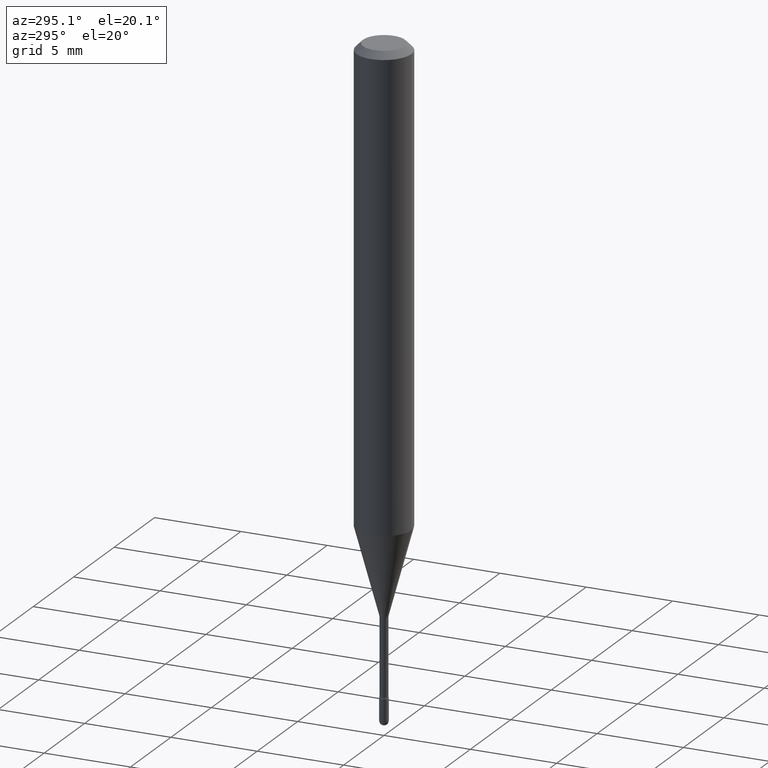
[diagram: clean part render]
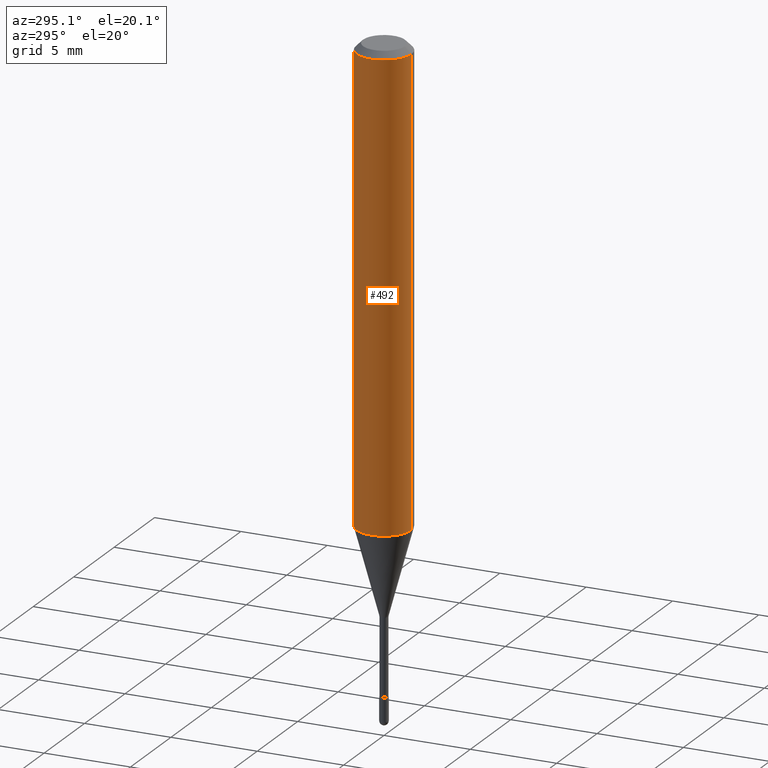
[diagram: same view with one face highlighted and labeled with its STEP entity id]
A machine part, auxiliary view. The second image highlights one B-rep face of the part: STEP entity #492.
In plain terms, the highlighted cylindrical surface (edge-blend (fillet) strip) has radius 1.5875 mm, axis along (-0, 0, 1).
Its self-contained STEP definition (entity closure, byte-faithful):
#26 = CARTESIAN_POINT ( 'NONE',  ( -4.364351673553657356E-16, -0.06250000000000371925, -1.061828102118092865 ) ) ;
#35 = FACE_OUTER_BOUND ( 'NONE', #183, .T. ) ;
#40 = CARTESIAN_POINT ( 'NONE',  ( 4.440892098500884514E-16, 0.06249999999999629463, -1.061828102118093309 ) ) ;
#58 = CARTESIAN_POINT ( 'NONE',  ( 4.440892098500625669E-16, 0.06250000000000000000, 2.598646609340937925E-16 ) ) ;
#64 = DIRECTION ( 'NONE',  ( -6.982962677686265922E-15, -1.000000000000000000, 3.483106191921935554E-15 ) ) ;
#99 = CARTESIAN_POINT ( 'NONE',  ( 3.668351455685129279E-31, -5.237009710971683760E-17, -0.01500000000000008271 ) ) ;
#108 = AXIS2_PLACEMENT_3D ( 'NONE', #163, #334, #563 ) ;
#130 = VERTEX_POINT ( 'NONE', #147 ) ;
#147 = CARTESIAN_POINT ( 'NONE',  ( 4.440892098500887472E-16, 0.06249999999999995837, -0.01500000000000030129 ) ) ;
#152 = AXIS2_PLACEMENT_3D ( 'NONE', #99, #263, #64 ) ;
#163 = CARTESIAN_POINT ( 'NONE',  ( -1.169113584055446105E-44, 1.669184350826100908E-30, 4.780733988912460139E-16 ) ) ;
#164 = EDGE_CURVE ( 'NONE', #130, #321, #451, .T. ) ;
#183 = EDGE_LOOP ( 'NONE', ( #359, #488, #552, #461 ) ) ;
#205 = EDGE_CURVE ( 'NONE', #458, #321, #354, .T. ) ;
#242 = EDGE_CURVE ( 'NONE', #464, #458, #541, .T. ) ;
#263 = DIRECTION ( 'NONE',  ( -2.445567637123405880E-29, 3.491339807314436332E-15, 1.000000000000000000 ) ) ;
#286 = CARTESIAN_POINT ( 'NONE',  ( 2.596772442728175058E-29, -3.707202721450037054E-15, -1.061828102118093087 ) ) ;
#305 = LINE ( 'NONE', #58, #532 ) ;
#317 = CARTESIAN_POINT ( 'NONE',  ( -4.364351673553912750E-16, -0.06250000000000005551, -0.01499999999999986587 ) ) ;
#321 = VERTEX_POINT ( 'NONE', #317 ) ;
#334 = DIRECTION ( 'NONE',  ( -2.445567637123405880E-29, 3.491339807314436332E-15, 1.000000000000000000 ) ) ;
#354 = LINE ( 'NONE', #400, #398 ) ;
#359 = ORIENTED_EDGE ( 'NONE', *, *, #403, .F. ) ;
#379 = CYLINDRICAL_SURFACE ( 'NONE', #108, 0.06250000000000000000 ) ;
#398 = VECTOR ( 'NONE', #555, 39.37007874015748143 ) ;
#400 = CARTESIAN_POINT ( 'NONE',  ( -4.364351673553916201E-16, -0.06250000000000000000, 6.962821368483982847E-16 ) ) ;
#403 = EDGE_CURVE ( 'NONE', #464, #130, #305, .T. ) ;
#439 = AXIS2_PLACEMENT_3D ( 'NONE', #286, #518, #562 ) ;
#451 = CIRCLE ( 'NONE', #152, 0.06250000000000000000 ) ;
#458 = VERTEX_POINT ( 'NONE', #26 ) ;
#461 = ORIENTED_EDGE ( 'NONE', *, *, #164, .F. ) ;
#464 = VERTEX_POINT ( 'NONE', #40 ) ;
#488 = ORIENTED_EDGE ( 'NONE', *, *, #242, .T. ) ;
#492 = ADVANCED_FACE ( 'NONE', ( #35 ), #379, .T. ) ;
#518 = DIRECTION ( 'NONE',  ( -2.445567637123405880E-29, 3.491339807314436332E-15, 1.000000000000000000 ) ) ;
#532 = VECTOR ( 'NONE', #549, 39.37007874015748143 ) ;
#541 = CIRCLE ( 'NONE', #439, 0.06250000000000000000 ) ;
#549 = DIRECTION ( 'NONE',  ( -2.445567637123405880E-29, 3.491339807314436332E-15, 1.000000000000000000 ) ) ;
#552 = ORIENTED_EDGE ( 'NONE', *, *, #205, .T. ) ;
#555 = DIRECTION ( 'NONE',  ( -2.445567637123405880E-29, 3.491339807314436332E-15, 1.000000000000000000 ) ) ;
#562 = DIRECTION ( 'NONE',  ( -6.982962677686265922E-15, -1.000000000000000000, 4.370956789862821150E-15 ) ) ;
#563 = DIRECTION ( 'NONE',  ( -6.982962677686265922E-15, -1.000000000000000000, 3.491339807314435149E-15 ) ) ;